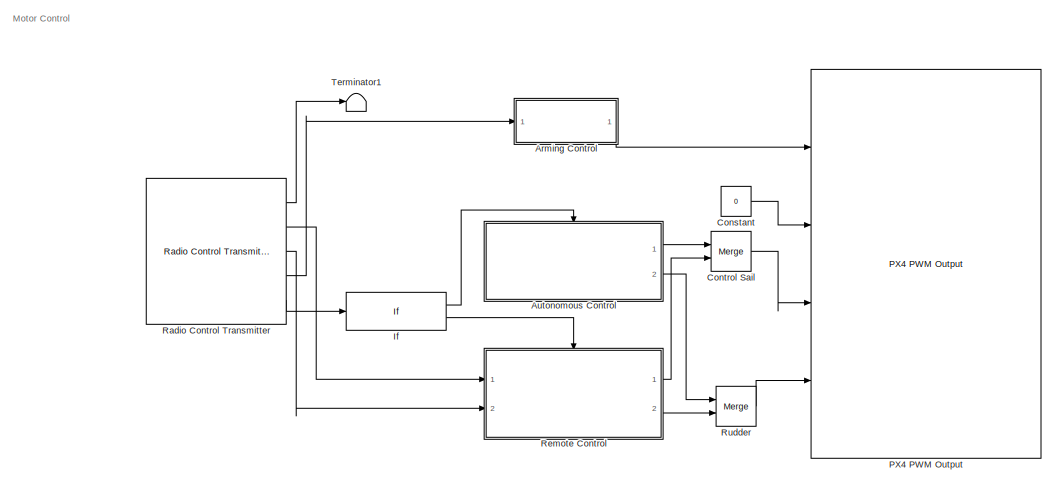
[diagram: root canvas - part 1/2, full width, top band]
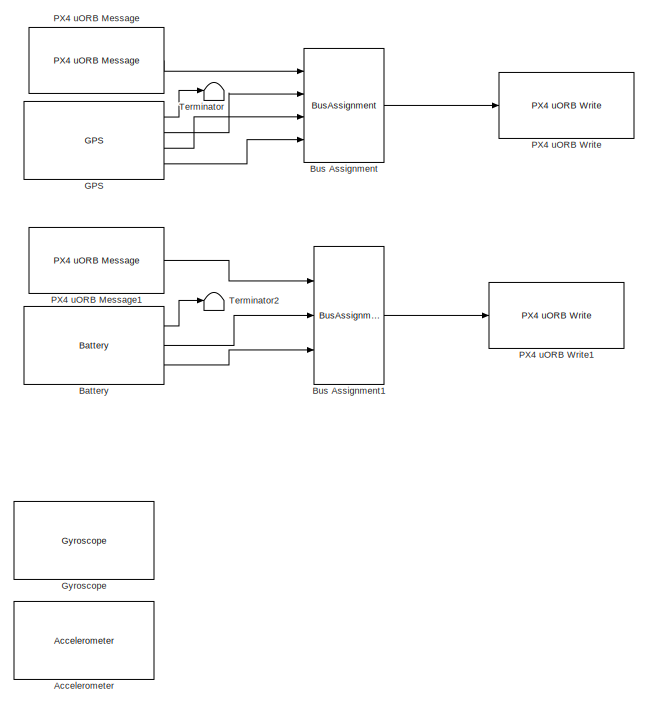
[diagram: root canvas - part 2/2, bottom center region]
MODEL slx_8e121f74f662
KIND model
CONFIG AbsTol = auto
CONFIG EnableMultiTasking = on
CONFIG FixedStep = auto
CONFIG MaxStep = auto
CONFIG MinStep = auto
CONFIG RelTol = 1e-3
CONFIG SampleTimeConstraint = Unconstrained
CONFIG SolverName = FixedStepAuto
CONFIG StartTime = 0.0
CONFIG StopTime = 10.0
BLOCK [Reference] Accelerometer  REF=px4Sensorslib/Accelerometer
  Ports = [0, 4]
  SourceBlock = px4Sensorslib/Accelerometer
  SourceProductBaseCode = PX4AUTOPILOTS
  SourceType = PX4 Accelerometer
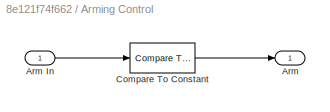
BLOCK [SubSystem] Arming Control
  Ports = [1, 1]
  RequestExecContextInheritance = off
BLOCK [Outport] Arming Control/Arm
BLOCK [Inport] Arming Control/Arm In
BLOCK [Reference] Arming Control/Compare To Constant  REF=simulink/Logic and Bit
Operations/Compare
To Constant
  Ports = [1, 1]
  SourceBlock = simulink/Logic and Bit\nOperations/Compare\nTo Constant
  SourceProductBaseCode = SL
  SourceType = Compare To Constant
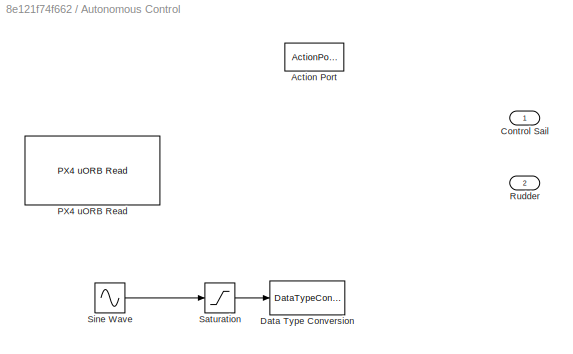
BLOCK [SubSystem] Autonomous Control
  Ports = [0, 2, 0, 0, 0, 0, 0, 1]
  RequestExecContextInheritance = off
  TreatAsAtomicUnit = on
BLOCK [ActionPort] Autonomous Control/Action Port
  ActionPortLabel = if(u1 > 1500)
BLOCK [Outport] Autonomous Control/Control Sail
BLOCK [DataTypeConversion] Autonomous Control/Data Type Conversion
  Commented = on
  OutDataTypeStr = uint16
  RndMeth = Floor
  SaturateOnIntegerOverflow = off
BLOCK [Reference] Autonomous Control/PX4 uORB Read  REF=px4uORBlib/PX4 uORB Read
  Ports = [0, 2]
  SourceBlock = px4uORBlib/PX4 uORB Read
  SourceProductBaseCode = PX4AUTOPILOTS
  SourceType = PX4 uORB Read
BLOCK [Outport] Autonomous Control/Rudder
  Port = 2
BLOCK [Saturate] Autonomous Control/Saturation
  Commented = on
  LowerLimit = 1000
  UpperLimit = 2000
BLOCK [Sin] Autonomous Control/Sine Wave
  Amplitude = 400
  Bias = 1500
  Commented = on
  Frequency = 3
  Ports = [0, 1]
  SampleTime = 0.004
BLOCK [Reference] Battery  REF=px4Sensorslib/Battery
  Ports = [0, 3]
  SourceBlock = px4Sensorslib/Battery
  SourceProductBaseCode = PX4AUTOPILOTS
  SourceType = PX4 Battery
BLOCK [BusAssignment] Bus Assignment
  AssignedSignals = lat,lon,alt
  Ports = [4, 1]
BLOCK [BusAssignment] Bus Assignment1
  AssignedSignals = voltage_v,remaining
  Ports = [3, 1]
BLOCK [Constant] Constant
  OutDataTypeStr = boolean
  Value = 0
BLOCK [Merge] Control Sail
  Ports = [2, 1]
BLOCK [Reference] GPS  REF=px4Sensorslib/GPS
  Ports = [0, 4]
  SourceBlock = px4Sensorslib/GPS
  SourceProductBaseCode = PX4AUTOPILOTS
  SourceType = PX4 GPS
BLOCK [Reference] Gyroscope  REF=px4Sensorslib/Gyroscope
  Ports = [0, 4]
  SourceBlock = px4Sensorslib/Gyroscope
  SourceProductBaseCode = PX4AUTOPILOTS
  SourceType = PX4 Gyroscope
BLOCK [If] If
  IfExpression = u1 > 1500
  Ports = [1, 2]
BLOCK [Reference] PX4 PWM Output  REF=px4lib/PX4 PWM Output
  Ports = [4]
  SourceBlock = px4lib/PX4 PWM Output
  SourceProductBaseCode = PX4AUTOPILOTS
  SourceType = PX4 PWM Output
BLOCK [Reference] PX4 uORB Message  REF=px4uORBlib/PX4 uORB Message
  Ports = [0, 1]
  SourceBlock = px4uORBlib/PX4 uORB Message
  SourceProductBaseCode = PX4AUTOPILOTS
  SourceType = PX4 uORB Message
BLOCK [Reference] PX4 uORB Message1  REF=px4uORBlib/PX4 uORB Message
  Ports = [0, 1]
  SourceBlock = px4uORBlib/PX4 uORB Message
  SourceProductBaseCode = PX4AUTOPILOTS
  SourceType = PX4 uORB Message
BLOCK [Reference] PX4 uORB Write  REF=px4uORBlib/PX4 uORB Write
  Ports = [1]
  SourceBlock = px4uORBlib/PX4 uORB Write
  SourceProductBaseCode = PX4AUTOPILOTS
  SourceType = PX4 uORB Write
BLOCK [Reference] PX4 uORB Write1  REF=px4uORBlib/PX4 uORB Write
  Ports = [1]
  SourceBlock = px4uORBlib/PX4 uORB Write
  SourceProductBaseCode = PX4AUTOPILOTS
  SourceType = PX4 uORB Write
BLOCK [Reference] Radio Control Transmitter  REF=px4Sensorslib/Radio Control Transmitter
  Ports = [0, 5]
  SourceBlock = px4Sensorslib/Radio Control Transmitter
  SourceProductBaseCode = PX4AUTOPILOTS
  SourceType = PX4 Radio Control Transmitter
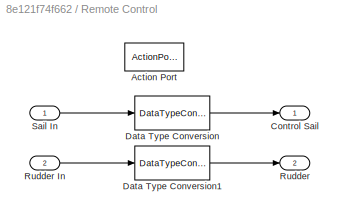
BLOCK [SubSystem] Remote Control
  Ports = [2, 2, 0, 0, 0, 0, 0, 1]
  RequestExecContextInheritance = off
  TreatAsAtomicUnit = on
BLOCK [ActionPort] Remote Control/Action Port
  ActionPortLabel = else
BLOCK [Outport] Remote Control/Control Sail
BLOCK [DataTypeConversion] Remote Control/Data Type Conversion
  OutDataTypeStr = uint16
  RndMeth = Floor
  SaturateOnIntegerOverflow = off
BLOCK [DataTypeConversion] Remote Control/Data Type Conversion1
  OutDataTypeStr = uint16
  RndMeth = Floor
  SaturateOnIntegerOverflow = off
BLOCK [Outport] Remote Control/Rudder
  Port = 2
BLOCK [Inport] Remote Control/Rudder In
  Port = 2
BLOCK [Inport] Remote Control/Sail In
BLOCK [Merge] Rudder
  Ports = [2, 1]
BLOCK [Terminator] Terminator
BLOCK [Terminator] Terminator1
BLOCK [Terminator] Terminator2
ANNOTATION (root): Motor Control
LINE Arming Control/Arm In:1 -> Arming Control/Compare To Constant:1
LINE Arming Control/Compare To Constant:1 -> Arming Control/Arm:1
LINE Arming Control:1 -> PX4 PWM Output:1
LINE Autonomous Control/Saturation:1 -> Autonomous Control/Data Type Conversion:1
LINE Autonomous Control/Sine Wave:1 -> Autonomous Control/Saturation:1
LINE Autonomous Control:1 -> Control Sail:1
LINE Autonomous Control:2 -> Rudder:1
LINE Battery:1 -> Terminator2:1
LINE Battery:2 -> Bus Assignment1:2
LINE Battery:3 -> Bus Assignment1:3
LINE Bus Assignment1:1 -> PX4 uORB Write1:1
LINE Bus Assignment:1 -> PX4 uORB Write:1
LINE Constant:1 -> PX4 PWM Output:2
LINE Control Sail:1 -> PX4 PWM Output:3
LINE GPS:1 -> Terminator:1
LINE GPS:2 -> Bus Assignment:2
LINE GPS:3 -> Bus Assignment:3
LINE GPS:4 -> Bus Assignment:4
LINE If:1 -> Autonomous Control:ifaction
LINE If:2 -> Remote Control:ifaction
LINE PX4 uORB Message1:1 -> Bus Assignment1:1
LINE PX4 uORB Message:1 -> Bus Assignment:1
LINE Radio Control Transmitter:1 -> Terminator1:1
LINE Radio Control Transmitter:2 -> Remote Control:1
LINE Radio Control Transmitter:3 -> Remote Control:2
LINE Radio Control Transmitter:4 -> Arming Control:1
LINE Radio Control Transmitter:5 -> If:1
LINE Remote Control/Data Type Conversion1:1 -> Remote Control/Rudder:1
LINE Remote Control/Data Type Conversion:1 -> Remote Control/Control Sail:1
LINE Remote Control/Rudder In:1 -> Remote Control/Data Type Conversion1:1
LINE Remote Control/Sail In:1 -> Remote Control/Data Type Conversion:1
LINE Remote Control:1 -> Control Sail:2
LINE Remote Control:2 -> Rudder:2
LINE Rudder:1 -> PX4 PWM Output:4
